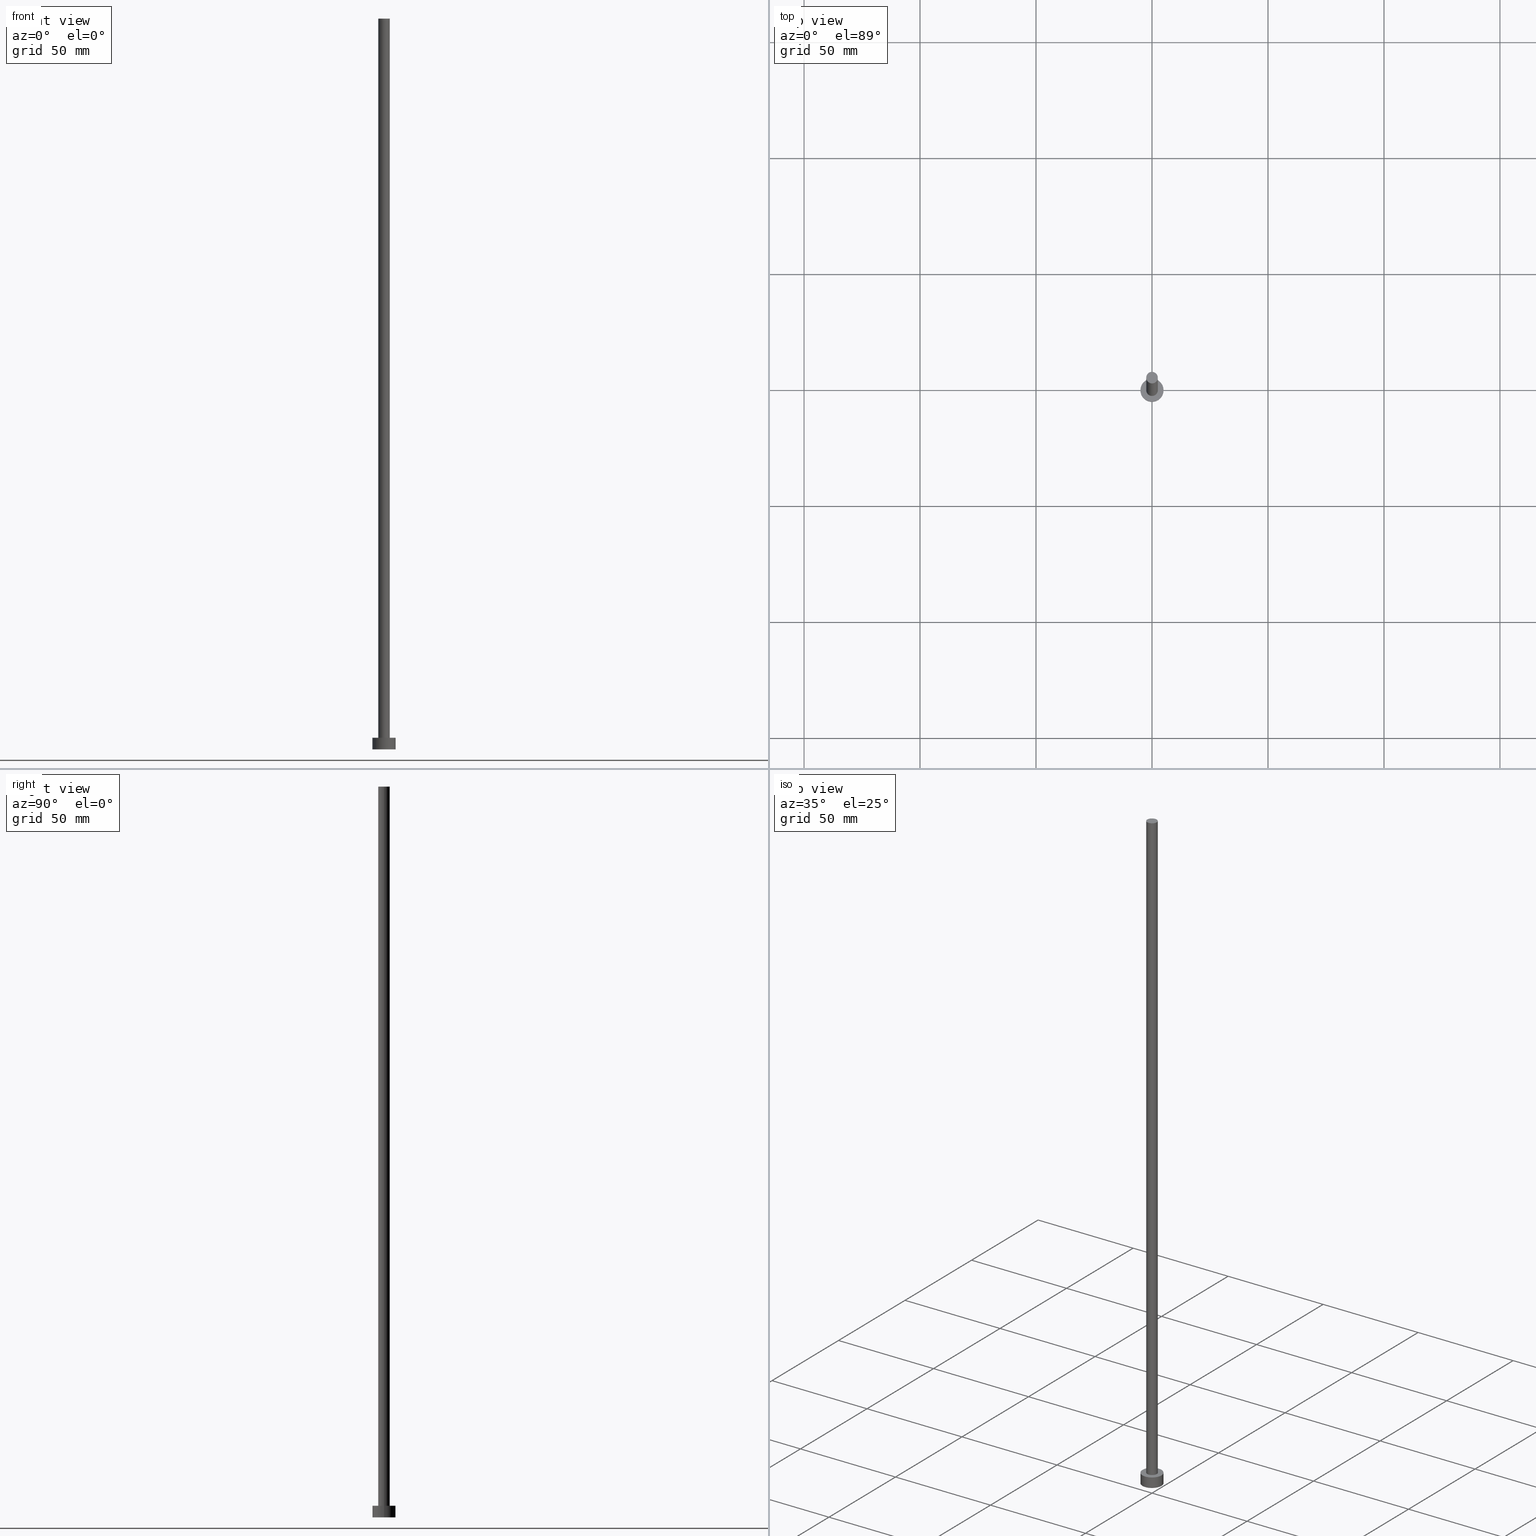
[diagram: canonical four-view strip — front | top / right | iso, engineering-drawing reading convention]
A machine part, canonical four-view strip (front | top / right | iso — engineering-drawing reading convention). The complete STEP part file that produces these views, byte-faithful:
ISO-10303-21;
HEADER;
FILE_DESCRIPTION (( 'STEP AP203' ),
    '1' );
FILE_NAME ('0e0f.STEP',
    '2023-02-13T16:17:36',
    ( '' ),
    ( '' ),
    'SwSTEP 2.0',
    'SolidWorks 2019',
    '' );
FILE_SCHEMA (( 'CONFIG_CONTROL_DESIGN' ));
ENDSEC;

DATA;
#1 = MECHANICAL_CONTEXT ( 'NONE', #176, 'mechanical' ) ;
#2 = CIRCLE ( 'NONE', #208, 2.500000000000000000 ) ;
#3 = ORIENTED_EDGE ( 'NONE', *, *, #223, .T. ) ;
#4 = CALENDAR_DATE ( 2023, 13, 2 ) ;
#5 = APPROVAL ( #198, 'NEUR�EN�' ) ;
#6 = CARTESIAN_POINT ( 'NONE',  ( 2.500000000000000000, 3.061616997868383141E-16, 315.0000000000000000 ) ) ;
#7 = DIRECTION ( 'NONE',  ( 0.000000000000000000, 0.000000000000000000, 1.000000000000000000 ) ) ;
#8 = LINE ( 'NONE', #9, #227 ) ;
#9 = CARTESIAN_POINT ( 'NONE',  ( -2.500000000000000000, 0.000000000000000000, 315.0000000000000000 ) ) ;
#10 = CC_DESIGN_APPROVAL ( #5, ( #37 ) ) ;
#11 = DIRECTION ( 'NONE',  ( 1.000000000000000000, 0.000000000000000000, 0.000000000000000000 ) ) ;
#12 = CC_DESIGN_PERSON_AND_ORGANIZATION_ASSIGNMENT ( #95, #53, ( #37 ) ) ;
#13 = DIRECTION ( 'NONE',  ( 0.000000000000000000, 0.000000000000000000, 1.000000000000000000 ) ) ;
#14 = PLANE ( 'NONE',  #102 ) ;
#15 = DIRECTION ( 'NONE',  ( 1.000000000000000000, 0.000000000000000000, 0.000000000000000000 ) ) ;
#16 =( GEOMETRIC_REPRESENTATION_CONTEXT ( 3 ) GLOBAL_UNCERTAINTY_ASSIGNED_CONTEXT ( ( #65 ) ) GLOBAL_UNIT_ASSIGNED_CONTEXT ( ( #20, #75, #159 ) ) REPRESENTATION_CONTEXT ( 'NONE', 'WORKASPACE' ) );
#17 = VERTEX_POINT ( 'NONE', #120 ) ;
#18 = ORIENTED_EDGE ( 'NONE', *, *, #131, .T. ) ;
#19 = LOCAL_TIME ( 17, 17, 36.00000000000000000, #94 ) ;
#20 =( LENGTH_UNIT ( ) NAMED_UNIT ( * ) SI_UNIT ( .MILLI., .METRE. ) );
#21 = PERSON_AND_ORGANIZATION ( #58, #240 ) ;
#22 = DATE_AND_TIME ( #178, #253 ) ;
#23 = DIRECTION ( 'NONE',  ( -0.000000000000000000, -0.000000000000000000, -1.000000000000000000 ) ) ;
#24 = APPROVAL_STATUS ( 'not_yet_approved' ) ;
#25 = ORIENTED_EDGE ( 'NONE', *, *, #195, .F. ) ;
#26 = COORDINATED_UNIVERSAL_TIME_OFFSET ( 1, 0, .AHEAD. ) ;
#27 = CARTESIAN_POINT ( 'NONE',  ( 5.000000000000000000, 6.123233995736766282E-16, 0.000000000000000000 ) ) ;
#28 = CARTESIAN_POINT ( 'NONE',  ( 0.000000000000000000, 0.000000000000000000, 5.000000000000000000 ) ) ;
#29 = AXIS2_PLACEMENT_3D ( 'NONE', #69, #39, #115 ) ;
#30 = CIRCLE ( 'NONE', #164, 2.500000000000000000 ) ;
#31 = DIRECTION ( 'NONE',  ( 0.000000000000000000, 0.000000000000000000, 1.000000000000000000 ) ) ;
#32 = CARTESIAN_POINT ( 'NONE',  ( -5.000000000000000000, 0.000000000000000000, 5.000000000000000000 ) ) ;
#33 = DIRECTION ( 'NONE',  ( 0.000000000000000000, 0.000000000000000000, 1.000000000000000000 ) ) ;
#34 = PRODUCT_DEFINITION_FORMATION_WITH_SPECIFIED_SOURCE ( 'LIBOVOLN�', '', #183, .NOT_KNOWN. ) ;
#35 = CALENDAR_DATE ( 2023, 13, 2 ) ;
#36 = COORDINATED_UNIVERSAL_TIME_OFFSET ( 1, 0, .AHEAD. ) ;
#37 = PRODUCT_DEFINITION ( 'NEZN�M�', '', #34, #106 ) ;
#38 = CC_DESIGN_APPROVAL ( #43, ( #34 ) ) ;
#39 = DIRECTION ( 'NONE',  ( -0.000000000000000000, -0.000000000000000000, -1.000000000000000000 ) ) ;
#40 = ORIENTED_EDGE ( 'NONE', *, *, #223, .F. ) ;
#41 = CARTESIAN_POINT ( 'NONE',  ( 0.000000000000000000, 0.000000000000000000, 0.000000000000000000 ) ) ;
#42 = CIRCLE ( 'NONE', #56, 5.000000000000000000 ) ;
#43 = APPROVAL ( #24, 'NEUR�EN�' ) ;
#44 = VECTOR ( 'NONE', #238, 1000.000000000000000 ) ;
#45 = EDGE_CURVE ( 'NONE', #242, #140, #2, .T. ) ;
#46 = CARTESIAN_POINT ( 'NONE',  ( 0.000000000000000000, 0.000000000000000000, 315.0000000000000000 ) ) ;
#47 = CLOSED_SHELL ( 'NONE', ( #246, #150, #110, #48, #179, #236, #197 ) ) ;
#48 = ADVANCED_FACE ( 'NONE', ( #186, #160 ), #127, .T. ) ;
#49 = ORIENTED_EDGE ( 'NONE', *, *, #226, .F. ) ;
#50 = PERSON_AND_ORGANIZATION_ROLE ( 'design_owner' ) ;
#51 = DIRECTION ( 'NONE',  ( 1.000000000000000000, 0.000000000000000000, 0.000000000000000000 ) ) ;
#52 = ORIENTED_EDGE ( 'NONE', *, *, #45, .F. ) ;
#53 = PERSON_AND_ORGANIZATION_ROLE ( 'creator' ) ;
#54 = APPROVAL_DATE_TIME ( #172, #43 ) ;
#55 = DIRECTION ( 'NONE',  ( -1.000000000000000000, 0.000000000000000000, 0.000000000000000000 ) ) ;
#56 = AXIS2_PLACEMENT_3D ( 'NONE', #72, #153, #51 ) ;
#57 = EDGE_LOOP ( 'NONE', ( #137, #184 ) ) ;
#58 = PERSON ( 'NEUR�EN�', 'NEUR�EN�', 'NEUR�EN�', ('NEUR�EN�'), ('NEUR�EN�'), ('NEUR�EN�') ) ;
#59 = CYLINDRICAL_SURFACE ( 'NONE', #122, 5.000000000000000000 ) ;
#60 = DIRECTION ( 'NONE',  ( 0.000000000000000000, 0.000000000000000000, 1.000000000000000000 ) ) ;
#61 = FACE_OUTER_BOUND ( 'NONE', #133, .T. ) ;
#62 = CIRCLE ( 'NONE', #189, 5.000000000000000000 ) ;
#63 = ORIENTED_EDGE ( 'NONE', *, *, #45, .T. ) ;
#64 = EDGE_CURVE ( 'NONE', #224, #216, #88, .T. ) ;
#65 = UNCERTAINTY_MEASURE_WITH_UNIT (LENGTH_MEASURE( 1.000000000000000082E-05 ), #20, 'distance_accuracy_value', 'NONE');
#66 = EDGE_CURVE ( 'NONE', #175, #116, #217, .T. ) ;
#67 = DIRECTION ( 'NONE',  ( 1.000000000000000000, 0.000000000000000000, 0.000000000000000000 ) ) ;
#68 = PERSON_AND_ORGANIZATION_ROLE ( 'creator' ) ;
#69 = CARTESIAN_POINT ( 'NONE',  ( 0.000000000000000000, 0.000000000000000000, 315.0000000000000000 ) ) ;
#70 = CALENDAR_DATE ( 2023, 13, 2 ) ;
#71 = CC_DESIGN_DATE_AND_TIME_ASSIGNMENT ( #233, #158, ( #250 ) ) ;
#72 = CARTESIAN_POINT ( 'NONE',  ( 0.000000000000000000, 0.000000000000000000, 5.000000000000000000 ) ) ;
#73 = EDGE_LOOP ( 'NONE', ( #255, #52, #134, #170 ) ) ;
#74 = PERSON_AND_ORGANIZATION ( #58, #240 ) ;
#75 =( NAMED_UNIT ( * ) PLANE_ANGLE_UNIT ( ) SI_UNIT ( $, .RADIAN. ) );
#76 = FACE_OUTER_BOUND ( 'NONE', #210, .T. ) ;
#77 = DIRECTION ( 'NONE',  ( -0.000000000000000000, -0.000000000000000000, -1.000000000000000000 ) ) ;
#78 = CARTESIAN_POINT ( 'NONE',  ( 0.000000000000000000, 0.000000000000000000, 0.000000000000000000 ) ) ;
#79 = CARTESIAN_POINT ( 'NONE',  ( 0.000000000000000000, 0.000000000000000000, 5.000000000000000000 ) ) ;
#80 = DIRECTION ( 'NONE',  ( -0.000000000000000000, -0.000000000000000000, -1.000000000000000000 ) ) ;
#81 = AXIS2_PLACEMENT_3D ( 'NONE', #78, #31, #11 ) ;
#82 = DIRECTION ( 'NONE',  ( 1.000000000000000000, 0.000000000000000000, -0.000000000000000000 ) ) ;
#83 = ORIENTED_EDGE ( 'NONE', *, *, #131, .F. ) ;
#84 = LOCAL_TIME ( 17, 17, 36.00000000000000000, #26 ) ;
#85 = CC_DESIGN_APPROVAL ( #123, ( #250 ) ) ;
#86 = EDGE_CURVE ( 'NONE', #242, #224, #8, .T. ) ;
#87 = APPROVAL_ROLE ( '' ) ;
#88 = CIRCLE ( 'NONE', #118, 2.500000000000000000 ) ;
#89 = APPROVAL_ROLE ( '' ) ;
#90 = CARTESIAN_POINT ( 'NONE',  ( -2.500000000000000000, 0.000000000000000000, 315.0000000000000000 ) ) ;
#91 = APPROVAL_DATE_TIME ( #142, #5 ) ;
#92 = CARTESIAN_POINT ( 'NONE',  ( 0.000000000000000000, 0.000000000000000000, 315.0000000000000000 ) ) ;
#93 = EDGE_LOOP ( 'NONE', ( #63, #177 ) ) ;
#94 = COORDINATED_UNIVERSAL_TIME_OFFSET ( 1, 0, .AHEAD. ) ;
#95 = PERSON_AND_ORGANIZATION ( #58, #240 ) ;
#96 = AXIS2_PLACEMENT_3D ( 'NONE', #28, #243, #221 ) ;
#97 = FACE_OUTER_BOUND ( 'NONE', #138, .T. ) ;
#98 = ORIENTED_EDGE ( 'NONE', *, *, #232, .T. ) ;
#99 = EDGE_CURVE ( 'NONE', #116, #17, #204, .T. ) ;
#100 = CYLINDRICAL_SURFACE ( 'NONE', #96, 5.000000000000000000 ) ;
#101 = CARTESIAN_POINT ( 'NONE',  ( 0.000000000000000000, 0.000000000000000000, 5.000000000000000000 ) ) ;
#102 = AXIS2_PLACEMENT_3D ( 'NONE', #46, #166, #82 ) ;
#103 = ORIENTED_EDGE ( 'NONE', *, *, #232, .F. ) ;
#104 = CC_DESIGN_DATE_AND_TIME_ASSIGNMENT ( #22, #231, ( #37 ) ) ;
#105 = CARTESIAN_POINT ( 'NONE',  ( 0.000000000000000000, 0.000000000000000000, 5.000000000000000000 ) ) ;
#106 = DESIGN_CONTEXT ( 'detailed design', #247, 'design' ) ;
#107 = LOCAL_TIME ( 17, 17, 36.00000000000000000, #252 ) ;
#108 = ORIENTED_EDGE ( 'NONE', *, *, #66, .F. ) ;
#109 = CALENDAR_DATE ( 2023, 13, 2 ) ;
#110 = ADVANCED_FACE ( 'NONE', ( #61 ), #100, .T. ) ;
#111 = ORIENTED_EDGE ( 'NONE', *, *, #66, .T. ) ;
#112 = ORIENTED_EDGE ( 'NONE', *, *, #195, .T. ) ;
#113 = SECURITY_CLASSIFICATION_LEVEL ( 'unclassified' ) ;
#114 = APPROVAL_ROLE ( '' ) ;
#115 = DIRECTION ( 'NONE',  ( -1.000000000000000000, 0.000000000000000000, 0.000000000000000000 ) ) ;
#116 = VERTEX_POINT ( 'NONE', #32 ) ;
#117 = PRODUCT_RELATED_PRODUCT_CATEGORY ( 'detail', '', ( #183 ) ) ;
#118 = AXIS2_PLACEMENT_3D ( 'NONE', #105, #192, #15 ) ;
#119 = CIRCLE ( 'NONE', #225, 2.500000000000000000 ) ;
#120 = CARTESIAN_POINT ( 'NONE',  ( -5.000000000000000000, 0.000000000000000000, 0.000000000000000000 ) ) ;
#121 = DIRECTION ( 'NONE',  ( 1.000000000000000000, 0.000000000000000000, 0.000000000000000000 ) ) ;
#122 = AXIS2_PLACEMENT_3D ( 'NONE', #101, #222, #126 ) ;
#123 = APPROVAL ( #219, 'NEUR�EN�' ) ;
#124 = APPROVAL_PERSON_ORGANIZATION ( #213, #123, #114 ) ;
#125 = CARTESIAN_POINT ( 'NONE',  ( 0.000000000000000000, 0.000000000000000000, 5.000000000000000000 ) ) ;
#126 = DIRECTION ( 'NONE',  ( -1.000000000000000000, 0.000000000000000000, 0.000000000000000000 ) ) ;
#127 = PLANE ( 'NONE',  #145 ) ;
#128 = CARTESIAN_POINT ( 'NONE',  ( -2.500000000000000000, 0.000000000000000000, 5.000000000000000000 ) ) ;
#129 = EDGE_CURVE ( 'NONE', #140, #216, #185, .T. ) ;
#130 = MANIFOLD_SOLID_BREP ( 'P�idat vysunut�m3', #47 ) ;
#131 = EDGE_CURVE ( 'NONE', #248, #17, #180, .T. ) ;
#132 = AXIS2_PLACEMENT_3D ( 'NONE', #92, #23, #55 ) ;
#133 = EDGE_LOOP ( 'NONE', ( #40, #103, #229, #112 ) ) ;
#134 = ORIENTED_EDGE ( 'NONE', *, *, #86, .T. ) ;
#135 = EDGE_LOOP ( 'NONE', ( #98, #111 ) ) ;
#136 = FACE_OUTER_BOUND ( 'NONE', #73, .T. ) ;
#137 = ORIENTED_EDGE ( 'NONE', *, *, #64, .F. ) ;
#138 = EDGE_LOOP ( 'NONE', ( #25, #83 ) ) ;
#139 = PERSON_AND_ORGANIZATION_ROLE ( 'design_supplier' ) ;
#140 = VERTEX_POINT ( 'NONE', #237 ) ;
#141 = EDGE_CURVE ( 'NONE', #216, #224, #30, .T. ) ;
#142 = DATE_AND_TIME ( #35, #107 ) ;
#143 = DIRECTION ( 'NONE',  ( 0.000000000000000000, 0.000000000000000000, 1.000000000000000000 ) ) ;
#144 = DIRECTION ( 'NONE',  ( 1.000000000000000000, 0.000000000000000000, 0.000000000000000000 ) ) ;
#145 = AXIS2_PLACEMENT_3D ( 'NONE', #125, #33, #205 ) ;
#146 = DIRECTION ( 'NONE',  ( 1.000000000000000000, 0.000000000000000000, 0.000000000000000000 ) ) ;
#147 = CC_DESIGN_PERSON_AND_ORGANIZATION_ASSIGNMENT ( #254, #68, ( #34 ) ) ;
#148 = CARTESIAN_POINT ( 'NONE',  ( 2.500000000000000000, 3.061616997868383141E-16, 5.000000000000000000 ) ) ;
#149 = LOCAL_TIME ( 17, 17, 36.00000000000000000, #174 ) ;
#150 = ADVANCED_FACE ( 'NONE', ( #76 ), #59, .T. ) ;
#151 = SHAPE_DEFINITION_REPRESENTATION ( #200, #234 ) ;
#152 = AXIS2_PLACEMENT_3D ( 'NONE', #235, #7, #67 ) ;
#153 = DIRECTION ( 'NONE',  ( 0.000000000000000000, 0.000000000000000000, 1.000000000000000000 ) ) ;
#154 = PERSON_AND_ORGANIZATION ( #58, #240 ) ;
#155 = ORIENTED_EDGE ( 'NONE', *, *, #129, .T. ) ;
#156 = APPLICATION_PROTOCOL_DEFINITION ( 'international standard', 'config_control_design', 1994, #247 ) ;
#157 = EDGE_LOOP ( 'NONE', ( #49, #155, #209, #165 ) ) ;
#158 = DATE_TIME_ROLE ( 'classification_date' ) ;
#159 =( NAMED_UNIT ( * ) SI_UNIT ( $, .STERADIAN. ) SOLID_ANGLE_UNIT ( ) );
#160 = FACE_OUTER_BOUND ( 'NONE', #135, .T. ) ;
#161 = CC_DESIGN_SECURITY_CLASSIFICATION ( #250, ( #34 ) ) ;
#162 = CARTESIAN_POINT ( 'NONE',  ( 0.000000000000000000, 0.000000000000000000, 0.000000000000000000 ) ) ;
#163 = FACE_OUTER_BOUND ( 'NONE', #93, .T. ) ;
#164 = AXIS2_PLACEMENT_3D ( 'NONE', #79, #241, #146 ) ;
#165 = ORIENTED_EDGE ( 'NONE', *, *, #86, .F. ) ;
#166 = DIRECTION ( 'NONE',  ( 0.000000000000000000, 0.000000000000000000, 1.000000000000000000 ) ) ;
#167 = APPROVAL_DATE_TIME ( #168, #123 ) ;
#168 = DATE_AND_TIME ( #109, #19 ) ;
#169 = AXIS2_PLACEMENT_3D ( 'NONE', #191, #13, #244 ) ;
#170 = ORIENTED_EDGE ( 'NONE', *, *, #64, .T. ) ;
#171 = APPROVAL_PERSON_ORGANIZATION ( #212, #43, #89 ) ;
#172 = DATE_AND_TIME ( #4, #149 ) ;
#173 = FACE_OUTER_BOUND ( 'NONE', #157, .T. ) ;
#174 = COORDINATED_UNIVERSAL_TIME_OFFSET ( 1, 0, .AHEAD. ) ;
#175 = VERTEX_POINT ( 'NONE', #190 ) ;
#176 = APPLICATION_CONTEXT ( 'configuration controlled 3d designs of mechanical parts and assemblies' ) ;
#177 = ORIENTED_EDGE ( 'NONE', *, *, #226, .T. ) ;
#178 = CALENDAR_DATE ( 2023, 13, 2 ) ;
#179 = ADVANCED_FACE ( 'NONE', ( #97 ), #182, .F. ) ;
#180 = CIRCLE ( 'NONE', #81, 5.000000000000000000 ) ;
#181 = APPLICATION_PROTOCOL_DEFINITION ( 'international standard', 'config_control_design', 1994, #176 ) ;
#182 = PLANE ( 'NONE',  #228 ) ;
#183 = PRODUCT ( '0e0f', '0e0f', '', ( #1 ) ) ;
#184 = ORIENTED_EDGE ( 'NONE', *, *, #141, .F. ) ;
#185 = LINE ( 'NONE', #6, #44 ) ;
#186 = FACE_BOUND ( 'NONE', #57, .T. ) ;
#187 = DIRECTION ( 'NONE',  ( 0.000000000000000000, 0.000000000000000000, 1.000000000000000000 ) ) ;
#188 = ORIENTED_EDGE ( 'NONE', *, *, #99, .F. ) ;
#189 = AXIS2_PLACEMENT_3D ( 'NONE', #41, #60, #121 ) ;
#190 = CARTESIAN_POINT ( 'NONE',  ( 5.000000000000000000, 6.123233995736766282E-16, 5.000000000000000000 ) ) ;
#191 = CARTESIAN_POINT ( 'NONE',  ( 0.000000000000000000, 0.000000000000000000, 5.000000000000000000 ) ) ;
#192 = DIRECTION ( 'NONE',  ( 0.000000000000000000, 0.000000000000000000, 1.000000000000000000 ) ) ;
#193 = CC_DESIGN_PERSON_AND_ORGANIZATION_ASSIGNMENT ( #21, #50, ( #183 ) ) ;
#194 = DIRECTION ( 'NONE',  ( 1.000000000000000000, 0.000000000000000000, 0.000000000000000000 ) ) ;
#195 = EDGE_CURVE ( 'NONE', #17, #248, #62, .T. ) ;
#196 = PERSON_AND_ORGANIZATION_ROLE ( 'classification_officer' ) ;
#197 = ADVANCED_FACE ( 'NONE', ( #163 ), #14, .T. ) ;
#198 = APPROVAL_STATUS ( 'not_yet_approved' ) ;
#199 = CARTESIAN_POINT ( 'NONE',  ( -5.000000000000000000, 0.000000000000000000, 5.000000000000000000 ) ) ;
#200 = PRODUCT_DEFINITION_SHAPE ( 'NONE', 'NONE',  #37 ) ;
#201 = CC_DESIGN_PERSON_AND_ORGANIZATION_ASSIGNMENT ( #154, #139, ( #34 ) ) ;
#202 = CARTESIAN_POINT ( 'NONE',  ( 0.000000000000000000, 0.000000000000000000, 315.0000000000000000 ) ) ;
#203 = DIRECTION ( 'NONE',  ( -0.000000000000000000, -0.000000000000000000, -1.000000000000000000 ) ) ;
#204 = LINE ( 'NONE', #199, #239 ) ;
#205 = DIRECTION ( 'NONE',  ( 1.000000000000000000, 0.000000000000000000, -0.000000000000000000 ) ) ;
#206 = CARTESIAN_POINT ( 'NONE',  ( 0.000000000000000000, 0.000000000000000000, 315.0000000000000000 ) ) ;
#207 = LINE ( 'NONE', #251, #245 ) ;
#208 = AXIS2_PLACEMENT_3D ( 'NONE', #202, #187, #144 ) ;
#209 = ORIENTED_EDGE ( 'NONE', *, *, #141, .T. ) ;
#210 = EDGE_LOOP ( 'NONE', ( #108, #3, #18, #188 ) ) ;
#211 = PERSON_AND_ORGANIZATION ( #58, #240 ) ;
#212 = PERSON_AND_ORGANIZATION ( #58, #240 ) ;
#213 = PERSON_AND_ORGANIZATION ( #58, #240 ) ;
#214 = CYLINDRICAL_SURFACE ( 'NONE', #132, 2.500000000000000000 ) ;
#215 = CC_DESIGN_PERSON_AND_ORGANIZATION_ASSIGNMENT ( #74, #196, ( #250 ) ) ;
#216 = VERTEX_POINT ( 'NONE', #148 ) ;
#217 = CIRCLE ( 'NONE', #169, 5.000000000000000000 ) ;
#218 = APPROVAL_PERSON_ORGANIZATION ( #211, #5, #87 ) ;
#219 = APPROVAL_STATUS ( 'not_yet_approved' ) ;
#220 = DIRECTION ( 'NONE',  ( 1.000000000000000000, 0.000000000000000000, -0.000000000000000000 ) ) ;
#221 = DIRECTION ( 'NONE',  ( -1.000000000000000000, 0.000000000000000000, 0.000000000000000000 ) ) ;
#222 = DIRECTION ( 'NONE',  ( -0.000000000000000000, -0.000000000000000000, -1.000000000000000000 ) ) ;
#223 = EDGE_CURVE ( 'NONE', #175, #248, #207, .T. ) ;
#224 = VERTEX_POINT ( 'NONE', #128 ) ;
#225 = AXIS2_PLACEMENT_3D ( 'NONE', #206, #249, #194 ) ;
#226 = EDGE_CURVE ( 'NONE', #140, #242, #119, .T. ) ;
#227 = VECTOR ( 'NONE', #77, 1000.000000000000000 ) ;
#228 = AXIS2_PLACEMENT_3D ( 'NONE', #162, #143, #220 ) ;
#229 = ORIENTED_EDGE ( 'NONE', *, *, #99, .T. ) ;
#230 = CYLINDRICAL_SURFACE ( 'NONE', #29, 2.500000000000000000 ) ;
#231 = DATE_TIME_ROLE ( 'creation_date' ) ;
#232 = EDGE_CURVE ( 'NONE', #116, #175, #42, .T. ) ;
#233 = DATE_AND_TIME ( #70, #84 ) ;
#234 = ADVANCED_BREP_SHAPE_REPRESENTATION ( '0e0f', ( #130, #152 ), #16 ) ;
#235 = CARTESIAN_POINT ( 'NONE',  ( 0.000000000000000000, 0.000000000000000000, 0.000000000000000000 ) ) ;
#236 = ADVANCED_FACE ( 'NONE', ( #136 ), #214, .T. ) ;
#237 = CARTESIAN_POINT ( 'NONE',  ( 2.500000000000000000, 3.061616997868383141E-16, 315.0000000000000000 ) ) ;
#238 = DIRECTION ( 'NONE',  ( -0.000000000000000000, -0.000000000000000000, -1.000000000000000000 ) ) ;
#239 = VECTOR ( 'NONE', #203, 1000.000000000000000 ) ;
#240 = ORGANIZATION ( 'NEUR�EN�', 'NEUR�EN�', '' ) ;
#241 = DIRECTION ( 'NONE',  ( 0.000000000000000000, 0.000000000000000000, 1.000000000000000000 ) ) ;
#242 = VERTEX_POINT ( 'NONE', #90 ) ;
#243 = DIRECTION ( 'NONE',  ( -0.000000000000000000, -0.000000000000000000, -1.000000000000000000 ) ) ;
#244 = DIRECTION ( 'NONE',  ( 1.000000000000000000, 0.000000000000000000, 0.000000000000000000 ) ) ;
#245 = VECTOR ( 'NONE', #80, 1000.000000000000000 ) ;
#246 = ADVANCED_FACE ( 'NONE', ( #173 ), #230, .T. ) ;
#247 = APPLICATION_CONTEXT ( 'configuration controlled 3d designs of mechanical parts and assemblies' ) ;
#248 = VERTEX_POINT ( 'NONE', #27 ) ;
#249 = DIRECTION ( 'NONE',  ( 0.000000000000000000, 0.000000000000000000, 1.000000000000000000 ) ) ;
#250 = SECURITY_CLASSIFICATION ( '', '', #113 ) ;
#251 = CARTESIAN_POINT ( 'NONE',  ( 5.000000000000000000, 6.123233995736766282E-16, 5.000000000000000000 ) ) ;
#252 = COORDINATED_UNIVERSAL_TIME_OFFSET ( 1, 0, .AHEAD. ) ;
#253 = LOCAL_TIME ( 17, 17, 36.00000000000000000, #36 ) ;
#254 = PERSON_AND_ORGANIZATION ( #58, #240 ) ;
#255 = ORIENTED_EDGE ( 'NONE', *, *, #129, .F. ) ;
ENDSEC;
END-ISO-10303-21;
